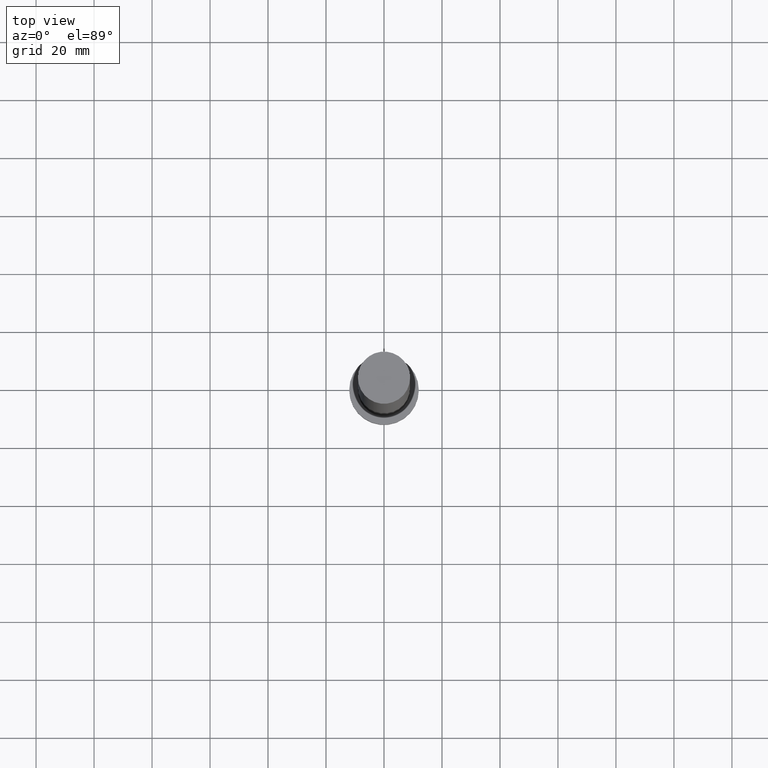
[diagram: clean part render]
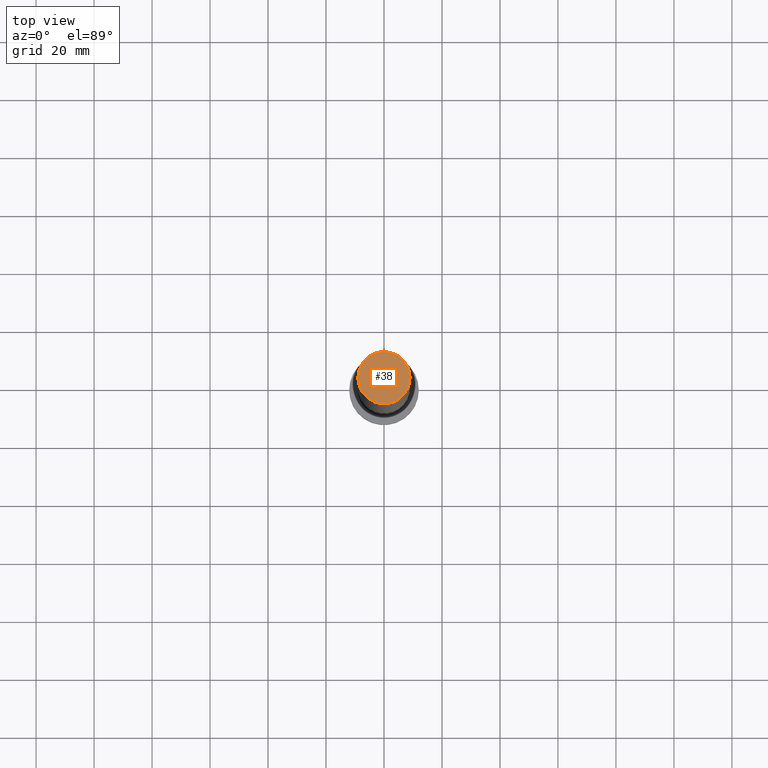
[diagram: same view with one face highlighted and labeled with its STEP entity id]
A machine part, top view. The second image highlights one B-rep face of the part: STEP entity #38.
In plain terms, the highlighted planar face has unit normal (0, 0, 1).
Its self-contained STEP definition (entity closure, byte-faithful):
#2 = CARTESIAN_POINT ( 'NONE',  ( 0.000000000000000000, 0.000000000000000000, 250.0000000000000000 ) ) ;
#17 = EDGE_CURVE ( 'NONE', #89, #27, #205, .T. ) ;
#21 = CARTESIAN_POINT ( 'NONE',  ( 0.000000000000000000, 0.000000000000000000, 250.0000000000000000 ) ) ;
#27 = VERTEX_POINT ( 'NONE', #80 ) ;
#36 = DIRECTION ( 'NONE',  ( 0.000000000000000000, 0.000000000000000000, 1.000000000000000000 ) ) ;
#38 = ADVANCED_FACE ( 'NONE', ( #157 ), #76, .T. ) ;
#40 = DIRECTION ( 'NONE',  ( 0.000000000000000000, 0.000000000000000000, 1.000000000000000000 ) ) ;
#54 = CARTESIAN_POINT ( 'NONE',  ( 0.000000000000000000, 0.000000000000000000, 250.0000000000000000 ) ) ;
#67 = ORIENTED_EDGE ( 'NONE', *, *, #17, .T. ) ;
#76 = PLANE ( 'NONE',  #252 ) ;
#80 = CARTESIAN_POINT ( 'NONE',  ( 9.000000000000000000, 1.102182119232617714E-15, 250.0000000000000000 ) ) ;
#89 = VERTEX_POINT ( 'NONE', #132 ) ;
#95 = DIRECTION ( 'NONE',  ( 0.000000000000000000, 0.000000000000000000, 1.000000000000000000 ) ) ;
#132 = CARTESIAN_POINT ( 'NONE',  ( -9.000000000000000000, 0.000000000000000000, 250.0000000000000000 ) ) ;
#142 = ORIENTED_EDGE ( 'NONE', *, *, #150, .T. ) ;
#143 = CIRCLE ( 'NONE', #179, 9.000000000000000000 ) ;
#150 = EDGE_CURVE ( 'NONE', #27, #89, #143, .T. ) ;
#154 = AXIS2_PLACEMENT_3D ( 'NONE', #2, #36, #172 ) ;
#157 = FACE_OUTER_BOUND ( 'NONE', #247, .T. ) ;
#172 = DIRECTION ( 'NONE',  ( 1.000000000000000000, 0.000000000000000000, 0.000000000000000000 ) ) ;
#173 = DIRECTION ( 'NONE',  ( 1.000000000000000000, 0.000000000000000000, -0.000000000000000000 ) ) ;
#177 = DIRECTION ( 'NONE',  ( 1.000000000000000000, 0.000000000000000000, 0.000000000000000000 ) ) ;
#179 = AXIS2_PLACEMENT_3D ( 'NONE', #21, #40, #177 ) ;
#205 = CIRCLE ( 'NONE', #154, 9.000000000000000000 ) ;
#247 = EDGE_LOOP ( 'NONE', ( #67, #142 ) ) ;
#252 = AXIS2_PLACEMENT_3D ( 'NONE', #54, #95, #173 ) ;